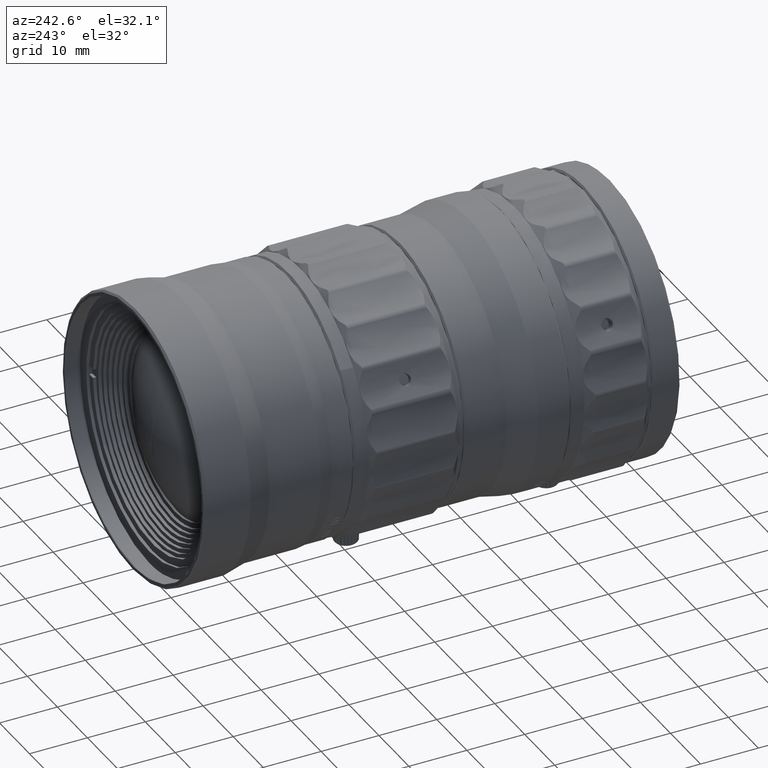
[diagram: clean part render]
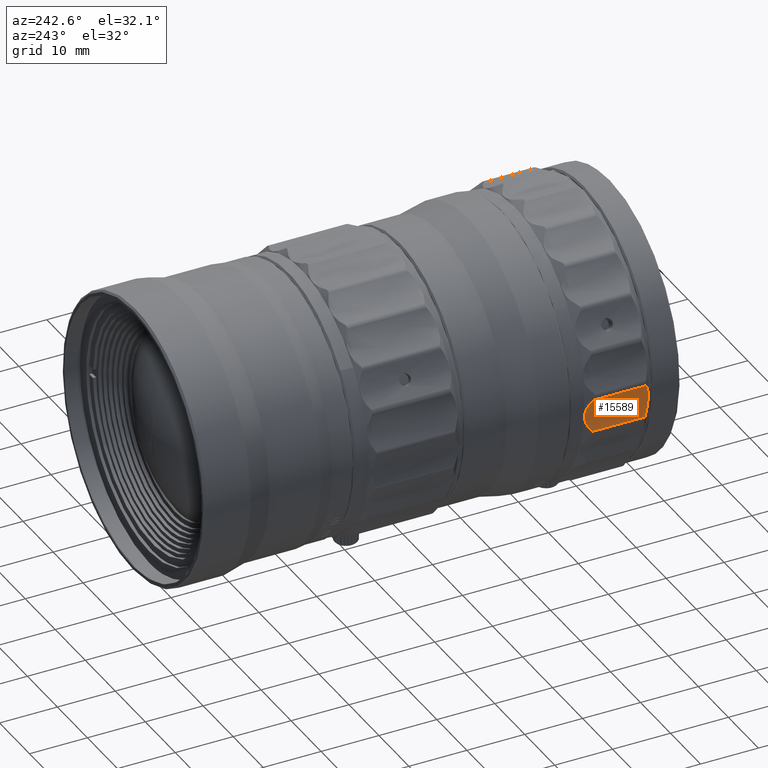
[diagram: same view with one face highlighted and labeled with its STEP entity id]
A machine part, auxiliary view. The second image highlights one B-rep face of the part: STEP entity #15589.
In plain terms, the highlighted face is a freeform B-spline surface patch.
Its self-contained STEP definition (entity closure, byte-faithful):
#918 = CARTESIAN_POINT ( 'NONE',  ( -23.28893946100473045, 20.45892016341717579, -0.7661344724729404199 ) ) ;
#1111 = CARTESIAN_POINT ( 'NONE',  ( -23.39292531758568572, 9.745458378199762350, -0.3455356825080664884 ) ) ;
#1284 = CARTESIAN_POINT ( 'NONE',  ( -23.84690922340945107, 10.22195618607575973, 1.093257759132496121 ) ) ;
#2503 = CARTESIAN_POINT ( 'NONE',  ( -23.22119099111924001, 9.910204093120759339, -3.983811706082847959 ) ) ;
#5261 = CARTESIAN_POINT ( 'NONE',  ( -23.37678867993259857, 10.22195618566711950, -4.836945632645379689 ) ) ;
#5660 = CARTESIAN_POINT ( 'NONE',  ( -23.16007886368879909, 9.759723916829123880, -3.409826260690646205 ) ) ;
#6366 = CARTESIAN_POINT ( 'NONE',  ( -23.08638679776587921, 9.517282762810669539, -0.8046656969866550213 ) ) ;
#7080 = CARTESIAN_POINT ( 'NONE',  ( -23.46839666065701024, 20.11333943876661579, -0.04352921628931736425 ) ) ;
#8299 = VERTEX_POINT ( 'NONE', #31939 ) ;
#9342 = VERTEX_POINT ( 'NONE', #61176 ) ;
#9419 = B_SPLINE_CURVE_WITH_KNOTS ( 'NONE', 1,
 ( #28599, #53531 ),
 .UNSPECIFIED., .F., .F.,
 ( 2, 2 ),
 ( -1.000000000000000000, 0.000000000000000000 ),
 .UNSPECIFIED. ) ;
#12607 = CARTESIAN_POINT ( 'NONE',  ( -23.51209078137436848, 9.857836281653259647, 0.1563024289611731898 ) ) ;
#13396 = CARTESIAN_POINT ( 'NONE',  ( -23.66052444742283001, 10.01446539676017089, 0.6281248109052534057 ) ) ;
#15022 = B_SPLINE_CURVE_WITH_KNOTS ( 'NONE', 3,
 ( #5261, #16305, #64639, #2503, #27444, #21309, #47349, #30599, #5660, #55918, #75084, #50579, #38298, #67768, #19142, #36712, #24466, #37905, #1111, #12607, #13396, #49372 ),
 .UNSPECIFIED., .F., .F.,
 ( 4, 2, 1, 1, 2, 2, 2, 2, 1, 1, 2, 2, 4 ),
 ( -1.000000000000000000, -0.8750000000000017764, -0.8125000000000027756, -0.7812500000000033307, -0.7656250000000034417, -0.7500000000000035527, -0.5000000000000034417, -0.3750000000000035527, -0.3125000000000036637, -0.2812500000000035527, -0.2656250000000035527, -0.2500000000000035527, 0.000000000000000000 ),
 .UNSPECIFIED. ) ;
#15589 = ADVANCED_FACE ( 'NONE', ( #59133 ), #43552, .T. ) ;
#16305 = CARTESIAN_POINT ( 'NONE',  ( -23.32150838536756154, 10.11840679624804729, -4.593062242542499618 ) ) ;
#17007 = EDGE_LOOP ( 'NONE', ( #19499, #54590, #53038, #32058 ) ) ;
#18146 = CARTESIAN_POINT ( 'NONE',  ( -23.20303756319294664, 20.58324549913783841, -1.302018069057851113 ) ) ;
#18226 = CARTESIAN_POINT ( 'NONE',  ( -23.84690922211098041, 20.64940345423818968, 1.093257756198610986 ) ) ;
#18948 = CARTESIAN_POINT ( 'NONE',  ( -23.16191605380273444, 20.22032141756043089, -3.432259796733465151 ) ) ;
#19142 = CARTESIAN_POINT ( 'NONE',  ( -23.30416695500174029, 9.665900158441687040, -0.7571318528039955309 ) ) ;
#19352 = CARTESIAN_POINT ( 'NONE',  ( -23.43071748268253174, 20.18703837016071390, -0.1899489123040098981 ) ) ;
#19499 = ORIENTED_EDGE ( 'NONE', *, *, #47115, .T. ) ;
#19746 = CARTESIAN_POINT ( 'NONE',  ( -23.20125032069683257, 20.00213854897463506, -3.908834874027614870 ) ) ;
#21309 = CARTESIAN_POINT ( 'NONE',  ( -23.17553607617410094, 9.801712013453105499, -3.589271225111310137 ) ) ;
#23561 = CARTESIAN_POINT ( 'NONE',  ( -22.92480451476969350, 9.517282762810669539, -2.842899971525320701 ) ) ;
#24031 = B_SPLINE_CURVE_WITH_KNOTS ( 'NONE', 1,
 ( #64649, #34363 ),
 .UNSPECIFIED., .F., .F.,
 ( 2, 2 ),
 ( -1.000000000000000000, 0.000000000000000000 ),
 .UNSPECIFIED. ) ;
#24466 = CARTESIAN_POINT ( 'NONE',  ( -23.37087021946578957, 9.725029619823311933, -0.4417971499599956942 ) ) ;
#25082 = CARTESIAN_POINT ( 'NONE',  ( -23.75877282615670083, 19.50232136974699770, 0.8733087742801641795 ) ) ;
#25484 = CARTESIAN_POINT ( 'NONE',  ( -23.84690922314895190, 19.30608763427549945, 1.093257756871544029 ) ) ;
#25875 = CARTESIAN_POINT ( 'NONE',  ( -23.14620847450744634, 20.31402600306685002, -3.212903306674888881 ) ) ;
#27444 = CARTESIAN_POINT ( 'NONE',  ( -23.19736045210879283, 9.856293975856404543, -3.801431376500474801 ) ) ;
#28599 = CARTESIAN_POINT ( 'NONE',  ( -23.37678867974955210, 19.30608763361280111, -4.836945635110839525 ) ) ;
#30087 = CARTESIAN_POINT ( 'NONE',  ( -23.37678867978859287, 9.517282762810669539, -4.836945634657086046 ) ) ;
#30599 = CARTESIAN_POINT ( 'NONE',  ( -23.16234137152502015, 9.766089753757572822, -3.438026264700819734 ) ) ;
#30812 = CARTESIAN_POINT ( 'NONE',  ( -23.57213458767744640, 19.90186233912872638, 0.3185475030516409234 ) ) ;
#31939 = CARTESIAN_POINT ( 'NONE',  ( -23.37678867974955210, 19.30608763361280111, -4.836945635110839525 ) ) ;
#31998 = CARTESIAN_POINT ( 'NONE',  ( -23.42550170142985522, 20.19710001388537179, -0.2108705956270974236 ) ) ;
#32058 = ORIENTED_EDGE ( 'NONE', *, *, #59105, .T. ) ;
#34363 = CARTESIAN_POINT ( 'NONE',  ( -23.84690922314895190, 19.30608763427549945, 1.093257756871544029 ) ) ;
#36525 = CARTESIAN_POINT ( 'NONE',  ( -23.37678867974955210, 19.30608763361280111, -4.836945635110839525 ) ) ;
#36712 = CARTESIAN_POINT ( 'NONE',  ( -23.34988412948009184, 9.705905011018122863, -0.5362584023145208212 ) ) ;
#37313 = CARTESIAN_POINT ( 'NONE',  ( -23.42204038543503231, 20.20376332160218880, -0.2248187397851669211 ) ) ;
#37905 = CARTESIAN_POINT ( 'NONE',  ( -23.38517048737614701, 9.738219286134933483, -0.3788702485375433082 ) ) ;
#38298 = CARTESIAN_POINT ( 'NONE',  ( -23.21074117373220957, 9.597344851967271495, -1.327762999131385069 ) ) ;
#43052 = CARTESIAN_POINT ( 'NONE',  ( -23.13393506798811217, 20.40190104001724336, -2.976723583049892596 ) ) ;
#43132 = CARTESIAN_POINT ( 'NONE',  ( -22.92480451476969350, 20.64940345423818968, -2.842899971525320701 ) ) ;
#43454 = CARTESIAN_POINT ( 'NONE',  ( -23.15857358662982435, 20.23924375764475769, -3.390075664030189895 ) ) ;
#43552 =( BOUNDED_SURFACE ( )  B_SPLINE_SURFACE ( 1, 3, ( 
 ( #62364, #6366, #23561, #30087 ),
 ( #18226, #73361, #43132, #74572 ) ),
 .UNSPECIFIED., .F., .F., .T. ) 
 B_SPLINE_SURFACE_WITH_KNOTS ( ( 2, 2 ),
 ( 4, 4 ),
 ( 0.002654431209000000097, 0.9978626172909998981 ),
 ( 0.000000000000000000, 1.000000000000000000 ),
 .UNSPECIFIED. ) 
 GEOMETRIC_REPRESENTATION_ITEM ( )  RATIONAL_B_SPLINE_SURFACE ( (
 ( 1.000000000000000000, 0.9698269174999416542, 0.9698269174999416542, 1.000000000000000000),
 ( 1.000000000000000000, 0.9698269174999416542, 0.9698269174999416542, 1.000000000000000000) ) ) 
 REPRESENTATION_ITEM ( '' )  SURFACE ( )  );
#44260 = CARTESIAN_POINT ( 'NONE',  ( -23.13955317832560965, 20.58338027588514407, -2.102227872557004495 ) ) ;
#47115 = EDGE_CURVE ( 'NONE', #77859, #8299, #64387, .T. ) ;
#47349 = CARTESIAN_POINT ( 'NONE',  ( -23.16745101460160683, 9.780101138367067293, -3.498501805061442038 ) ) ;
#49372 = CARTESIAN_POINT ( 'NONE',  ( -23.84690922340945107, 10.22195618607575973, 1.093257759132496121 ) ) ;
#49590 = CARTESIAN_POINT ( 'NONE',  ( -23.16056613618625448, 20.22792658203378835, -3.415386203193328196 ) ) ;
#50579 = CARTESIAN_POINT ( 'NONE',  ( -23.18076071641211300, 9.583299772238804692, -1.582337693106023124 ) ) ;
#50791 = CARTESIAN_POINT ( 'NONE',  ( -23.15415050823954957, 20.26501650304348345, -3.331017278535949533 ) ) ;
#53038 = ORIENTED_EDGE ( 'NONE', *, *, #80460, .T. ) ;
#53531 = CARTESIAN_POINT ( 'NONE',  ( -23.37678867993259857, 10.22195618566711950, -4.836945632645379689 ) ) ;
#54590 = ORIENTED_EDGE ( 'NONE', *, *, #67691, .T. ) ;
#55918 = CARTESIAN_POINT ( 'NONE',  ( -23.11881543328187760, 9.639844175171917939, -2.862118494403764313 ) ) ;
#56936 = CARTESIAN_POINT ( 'NONE',  ( -23.12958365756751178, 20.45983284923812562, -2.774493066158611132 ) ) ;
#59105 = EDGE_CURVE ( 'NONE', #78551, #77859, #24031, .T. ) ;
#59133 = FACE_OUTER_BOUND ( 'NONE', #17007, .T. ) ;
#59703 = CARTESIAN_POINT ( 'NONE',  ( -23.84690922314895190, 19.30608763427549945, 1.093257756871544029 ) ) ;
#61176 = CARTESIAN_POINT ( 'NONE',  ( -23.37678867993259857, 10.22195618566711950, -4.836945632645379689 ) ) ;
#62283 = CARTESIAN_POINT ( 'NONE',  ( -23.16270530197294519, 20.21591454344132899, -3.441950375290079300 ) ) ;
#62364 = CARTESIAN_POINT ( 'NONE',  ( -23.84690922211098041, 9.517282762810669539, 1.093257756198610986 ) ) ;
#64387 = B_SPLINE_CURVE_WITH_KNOTS ( 'NONE', 3,
 ( #25484, #25082, #74093, #30812, #75686, #7080, #75293, #19352, #31998, #37313, #74895, #918, #18146, #44260, #68774, #56936, #43052, #25875, #50791, #43454, #49590, #18948, #62283, #19746, #69565, #36525 ),
 .UNSPECIFIED., .F., .F.,
 ( 4, 2, 1, 1, 1, 1, 2, 2, 2, 2, 1, 1, 1, 1, 2, 2, 4 ),
 ( -1.000000000000000000, -0.8749999999999895639, -0.8124999999999842348, -0.7812499999999820144, -0.7656249999999813483, -0.7578124999999810152, -0.7539062499999810152, -0.7499999999999810152, -0.4999999999999931166, -0.3749999999999990008, -0.3125000000000019984, -0.2812500000000031086, -0.2656250000000038858, -0.2578125000000041078, -0.2539062500000042188, -0.2500000000000044409, 0.000000000000000000 ),
 .UNSPECIFIED. ) ;
#64639 = CARTESIAN_POINT ( 'NONE',  ( -23.27581165135116947, 10.02752509839817385, -4.349009915709814322 ) ) ;
#64649 = CARTESIAN_POINT ( 'NONE',  ( -23.84690922340945107, 10.22195618607575973, 1.093257759132496121 ) ) ;
#67691 = EDGE_CURVE ( 'NONE', #8299, #9342, #9419, .T. ) ;
#67768 = CARTESIAN_POINT ( 'NONE',  ( -23.27055251523242774, 9.639528972751605806, -0.9471360823682503094 ) ) ;
#68774 = CARTESIAN_POINT ( 'NONE',  ( -23.12903751327807811, 20.55251026631679778, -2.370643470458041246 ) ) ;
#69565 = CARTESIAN_POINT ( 'NONE',  ( -23.27165364991860486, 19.69995920079795226, -4.373115114517725388 ) ) ;
#73361 = CARTESIAN_POINT ( 'NONE',  ( -23.08638679776587921, 20.64940345423818968, -0.8046656969866550213 ) ) ;
#74093 = CARTESIAN_POINT ( 'NONE',  ( -23.67912066136402061, 19.67579426170081547, 0.6518832321854625134 ) ) ;
#74572 = CARTESIAN_POINT ( 'NONE',  ( -23.37678867978859287, 20.64940345423818968, -4.836945634657086046 ) ) ;
#74895 = CARTESIAN_POINT ( 'NONE',  ( -23.42062886056984894, 20.20647619379071713, -0.2305272874051615684 ) ) ;
#75084 = CARTESIAN_POINT ( 'NONE',  ( -23.12027196318893729, 9.583397535436702697, -2.346220868397285386 ) ) ;
#75293 = CARTESIAN_POINT ( 'NONE',  ( -23.44305443409430012, 20.16309442642393890, -0.1411357791889557567 ) ) ;
#75686 = CARTESIAN_POINT ( 'NONE',  ( -23.52176337414023166, 20.00636106271698722, 0.1515794006481070155 ) ) ;
#77859 = VERTEX_POINT ( 'NONE', #59703 ) ;
#78551 = VERTEX_POINT ( 'NONE', #1284 ) ;
#80460 = EDGE_CURVE ( 'NONE', #9342, #78551, #15022, .T. ) ;